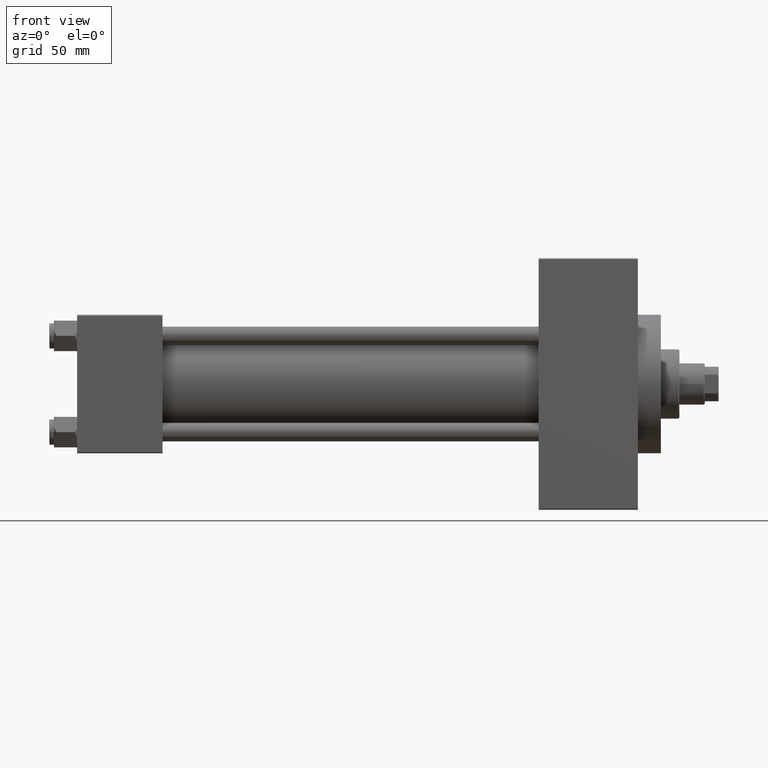
[diagram: clean part render]
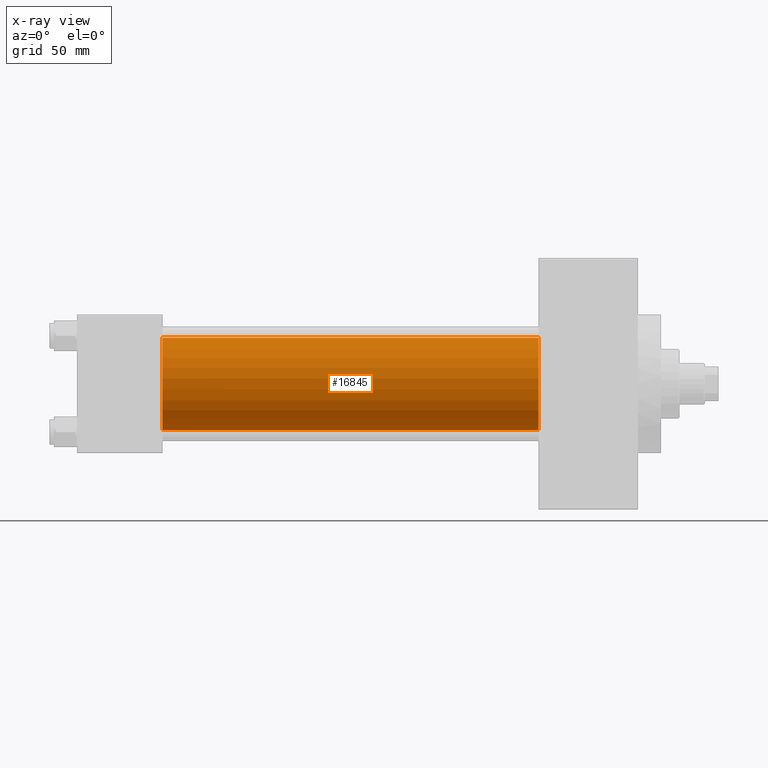
[diagram: x-ray — body ghosted, one internal face saturated and labeled with its STEP entity id]
A machine part, front view, then the same camera in x-ray: the body is ghosted and one INTERNAL B-rep face — a face not visible from any outside direction — is saturated and labeled: STEP entity #16845.
In plain terms, the highlighted cylindrical surface (partial cylindrical patch) has radius 20 mm, axis along (-1, -0, -0).
Its self-contained STEP definition (entity closure, byte-faithful):
#799 = ORIENTED_EDGE ( 'NONE', *, *, #8338, .F. ) ;
#954 = AXIS2_PLACEMENT_3D ( 'NONE', #49030, #48790, #14870 ) ;
#1193 = CARTESIAN_POINT ( 'NONE',  ( 37.00000000000000000, -2.602085213965210642E-15, 0.000000000000000000 ) ) ;
#2374 = DIRECTION ( 'NONE',  ( -1.000000000000000000, -0.000000000000000000, -0.000000000000000000 ) ) ;
#2404 = EDGE_CURVE ( 'NONE', #10847, #37526, #26439, .T. ) ;
#2759 = AXIS2_PLACEMENT_3D ( 'NONE', #39629, #28657, #9706 ) ;
#3823 = AXIS2_PLACEMENT_3D ( 'NONE', #1193, #17111, #40064 ) ;
#4448 = CARTESIAN_POINT ( 'NONE',  ( 37.00000000000000000, -2.602085213965210642E-15, 20.00000000000000000 ) ) ;
#5124 = EDGE_LOOP ( 'NONE', ( #12258, #36575, #43607, #799 ) ) ;
#5826 = LINE ( 'NONE', #21022, #20934 ) ;
#6938 = CARTESIAN_POINT ( 'NONE',  ( 37.00000000000000000, -1.527916156705042519E-16, -20.00000000000000000 ) ) ;
#8338 = EDGE_CURVE ( 'NONE', #10847, #44197, #5826, .T. ) ;
#9706 = DIRECTION ( 'NONE',  ( 0.000000000000000000, 0.000000000000000000, 1.000000000000000000 ) ) ;
#10847 = VERTEX_POINT ( 'NONE', #40715 ) ;
#12258 = ORIENTED_EDGE ( 'NONE', *, *, #2404, .T. ) ;
#14835 = CARTESIAN_POINT ( 'NONE',  ( 200.0000000000000000, -1.527916156705042519E-16, -20.00000000000000000 ) ) ;
#14870 = DIRECTION ( 'NONE',  ( 0.000000000000000000, 0.000000000000000000, -1.000000000000000000 ) ) ;
#16845 = ADVANCED_FACE ( 'NONE', ( #47591 ), #46633, .F. ) ;
#17111 = DIRECTION ( 'NONE',  ( 1.000000000000000000, 0.000000000000000000, 0.000000000000000000 ) ) ;
#20934 = VECTOR ( 'NONE', #43473, 1000.000000000000000 ) ;
#21022 = CARTESIAN_POINT ( 'NONE',  ( 200.0000000000000000, -2.602085213965210642E-15, 20.00000000000000000 ) ) ;
#21825 = LINE ( 'NONE', #14835, #42042 ) ;
#23858 = EDGE_CURVE ( 'NONE', #44197, #38947, #34077, .T. ) ;
#26439 = CIRCLE ( 'NONE', #954, 20.00000000000000000 ) ;
#28657 = DIRECTION ( 'NONE',  ( -1.000000000000000000, -0.000000000000000000, -0.000000000000000000 ) ) ;
#29157 = CARTESIAN_POINT ( 'NONE',  ( 200.0000000000000000, -1.527916156705042519E-16, -20.00000000000000000 ) ) ;
#34077 = CIRCLE ( 'NONE', #3823, 20.00000000000000000 ) ;
#36575 = ORIENTED_EDGE ( 'NONE', *, *, #48100, .T. ) ;
#37526 = VERTEX_POINT ( 'NONE', #29157 ) ;
#38947 = VERTEX_POINT ( 'NONE', #6938 ) ;
#39629 = CARTESIAN_POINT ( 'NONE',  ( 200.0000000000000000, -2.602085213965210642E-15, 0.000000000000000000 ) ) ;
#40064 = DIRECTION ( 'NONE',  ( 0.000000000000000000, 0.000000000000000000, -1.000000000000000000 ) ) ;
#40715 = CARTESIAN_POINT ( 'NONE',  ( 200.0000000000000000, -2.602085213965210642E-15, 20.00000000000000000 ) ) ;
#42042 = VECTOR ( 'NONE', #2374, 1000.000000000000000 ) ;
#43473 = DIRECTION ( 'NONE',  ( -1.000000000000000000, -0.000000000000000000, -0.000000000000000000 ) ) ;
#43607 = ORIENTED_EDGE ( 'NONE', *, *, #23858, .F. ) ;
#44197 = VERTEX_POINT ( 'NONE', #4448 ) ;
#46633 = CYLINDRICAL_SURFACE ( 'NONE', #2759, 20.00000000000000000 ) ;
#47591 = FACE_OUTER_BOUND ( 'NONE', #5124, .T. ) ;
#48100 = EDGE_CURVE ( 'NONE', #37526, #38947, #21825, .T. ) ;
#48790 = DIRECTION ( 'NONE',  ( 1.000000000000000000, 0.000000000000000000, 0.000000000000000000 ) ) ;
#49030 = CARTESIAN_POINT ( 'NONE',  ( 200.0000000000000000, -2.602085213965210642E-15, 0.000000000000000000 ) ) ;